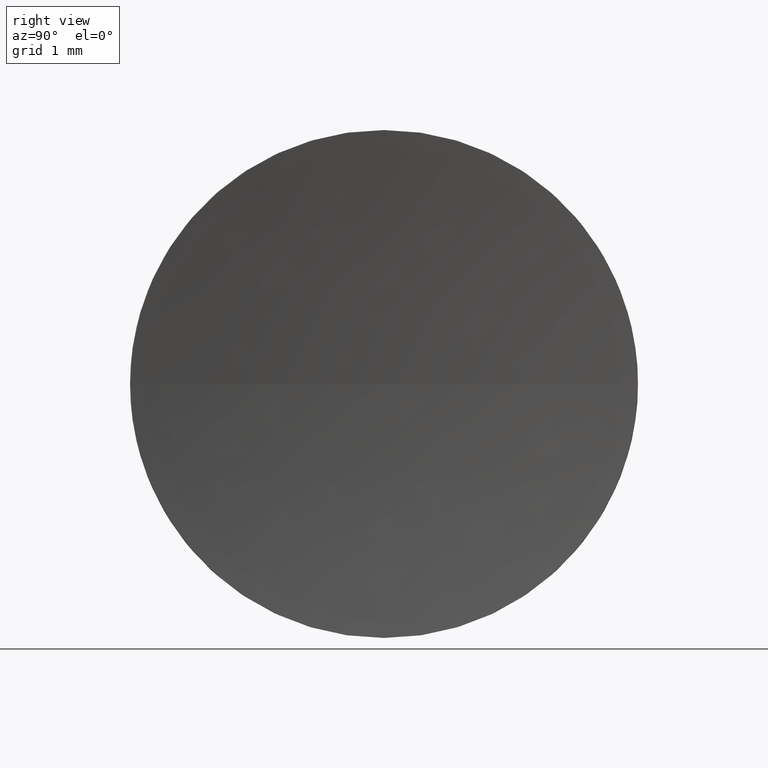
[diagram: clean part render]
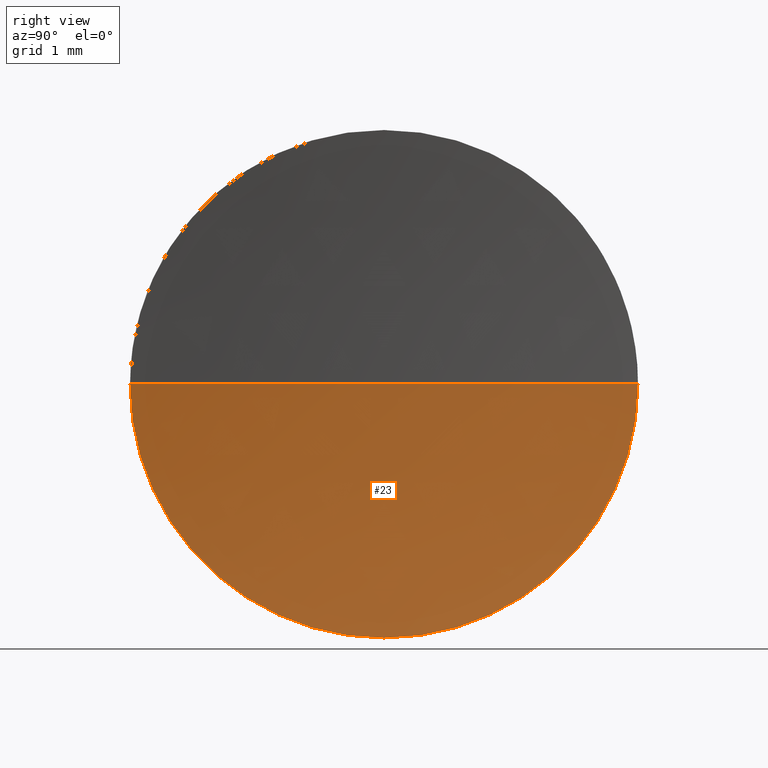
[diagram: same view with one face highlighted and labeled with its STEP entity id]
A machine part, right view. The second image highlights one B-rep face of the part: STEP entity #23.
In plain terms, the highlighted spherical surface has radius 23.7328 mm.
Its self-contained STEP definition (entity closure, byte-faithful):
#1 = DIRECTION ( 'NONE',  ( -1.000000000000000000, -0.0000000000000000000, -0.0000000000000000000 ) ) ;
#4 = FACE_OUTER_BOUND ( 'NONE', #22, .T. ) ;
#12 = CARTESIAN_POINT ( 'NONE',  ( 47.40501261472310500, 13.04452057459747700, 0.0000000000000000000 ) ) ;
#15 = CARTESIAN_POINT ( 'NONE',  ( 23.88218947520227800, 13.04452057459747900, 0.0000000000000000000 ) ) ;
#16 = CARTESIAN_POINT ( 'NONE',  ( 23.88218947520227800, 13.04452057459747900, 0.0000000000000000000 ) ) ;
#17 = ORIENTED_EDGE ( 'NONE', *, *, #141, .F. ) ;
#22 = EDGE_LOOP ( 'NONE', ( #66, #167, #17, #45 ) ) ;
#23 = ADVANCED_FACE ( 'NONE', ( #4 ), #58, .F. ) ;
#27 = DIRECTION ( 'NONE',  ( 0.0000000000000000000, 0.0000000000000000000, 1.000000000000000000 ) ) ;
#32 = DIRECTION ( 'NONE',  ( -1.000000000000000000, -0.0000000000000000000, -0.0000000000000000000 ) ) ;
#37 = EDGE_CURVE ( 'NONE', #46, #135, #128, .T. ) ;
#41 = AXIS2_PLACEMENT_3D ( 'NONE', #15, #1, #110 ) ;
#45 = ORIENTED_EDGE ( 'NONE', *, *, #83, .T. ) ;
#46 = VERTEX_POINT ( 'NONE', #88 ) ;
#48 = VERTEX_POINT ( 'NONE', #144 ) ;
#52 = DIRECTION ( 'NONE',  ( 0.0000000000000000000, 1.000000000000000000, 1.224646799147353200E-016 ) ) ;
#53 = CARTESIAN_POINT ( 'NONE',  ( 47.40501261472310500, 13.04452057459747700, 0.0000000000000000000 ) ) ;
#58 = SPHERICAL_SURFACE ( 'NONE', #119, 23.73279815894401100 ) ;
#66 = ORIENTED_EDGE ( 'NONE', *, *, #114, .F. ) ;
#74 = DIRECTION ( 'NONE',  ( 0.0000000000000000000, 1.224646799147353200E-016, -1.000000000000000000 ) ) ;
#77 = CIRCLE ( 'NONE', #41, 3.150000000000001700 ) ;
#82 = DIRECTION ( 'NONE',  ( 0.0000000000000000000, 0.0000000000000000000, 1.000000000000000000 ) ) ;
#83 = EDGE_CURVE ( 'NONE', #48, #148, #174, .T. ) ;
#88 = CARTESIAN_POINT ( 'NONE',  ( 23.88218947520227800, 13.04452057459747900, -3.150000000000001700 ) ) ;
#94 = AXIS2_PLACEMENT_3D ( 'NONE', #16, #32, #82 ) ;
#104 = CARTESIAN_POINT ( 'NONE',  ( 23.88218947520227800, 9.894520574597480700, -3.857637417314157300E-016 ) ) ;
#106 = DIRECTION ( 'NONE',  ( 1.000000000000000000, 0.0000000000000000000, 0.0000000000000000000 ) ) ;
#108 = DIRECTION ( 'NONE',  ( 0.0000000000000000000, 1.000000000000000000, 0.0000000000000000000 ) ) ;
#110 = DIRECTION ( 'NONE',  ( 0.0000000000000000000, 0.0000000000000000000, 1.000000000000000000 ) ) ;
#114 = EDGE_CURVE ( 'NONE', #135, #148, #127, .T. ) ;
#116 = AXIS2_PLACEMENT_3D ( 'NONE', #157, #74, #52 ) ;
#119 = AXIS2_PLACEMENT_3D ( 'NONE', #12, #120, #108 ) ;
#120 = DIRECTION ( 'NONE',  ( 0.0000000000000000000, 0.0000000000000000000, -1.000000000000000000 ) ) ;
#123 = CARTESIAN_POINT ( 'NONE',  ( 23.67221445577909100, 13.04452057459747900, 0.0000000000000000000 ) ) ;
#127 = CIRCLE ( 'NONE', #116, 23.73279815894401100 ) ;
#128 = CIRCLE ( 'NONE', #94, 3.150000000000001700 ) ;
#135 = VERTEX_POINT ( 'NONE', #104 ) ;
#141 = EDGE_CURVE ( 'NONE', #48, #46, #77, .T. ) ;
#144 = CARTESIAN_POINT ( 'NONE',  ( 23.88218947520227800, 16.19452057459747600, 0.0000000000000000000 ) ) ;
#148 = VERTEX_POINT ( 'NONE', #123 ) ;
#157 = CARTESIAN_POINT ( 'NONE',  ( 47.40501261472310500, 13.04452057459747700, 0.0000000000000000000 ) ) ;
#167 = ORIENTED_EDGE ( 'NONE', *, *, #37, .F. ) ;
#174 = CIRCLE ( 'NONE', #178, 23.73279815894401100 ) ;
#178 = AXIS2_PLACEMENT_3D ( 'NONE', #53, #27, #106 ) ;